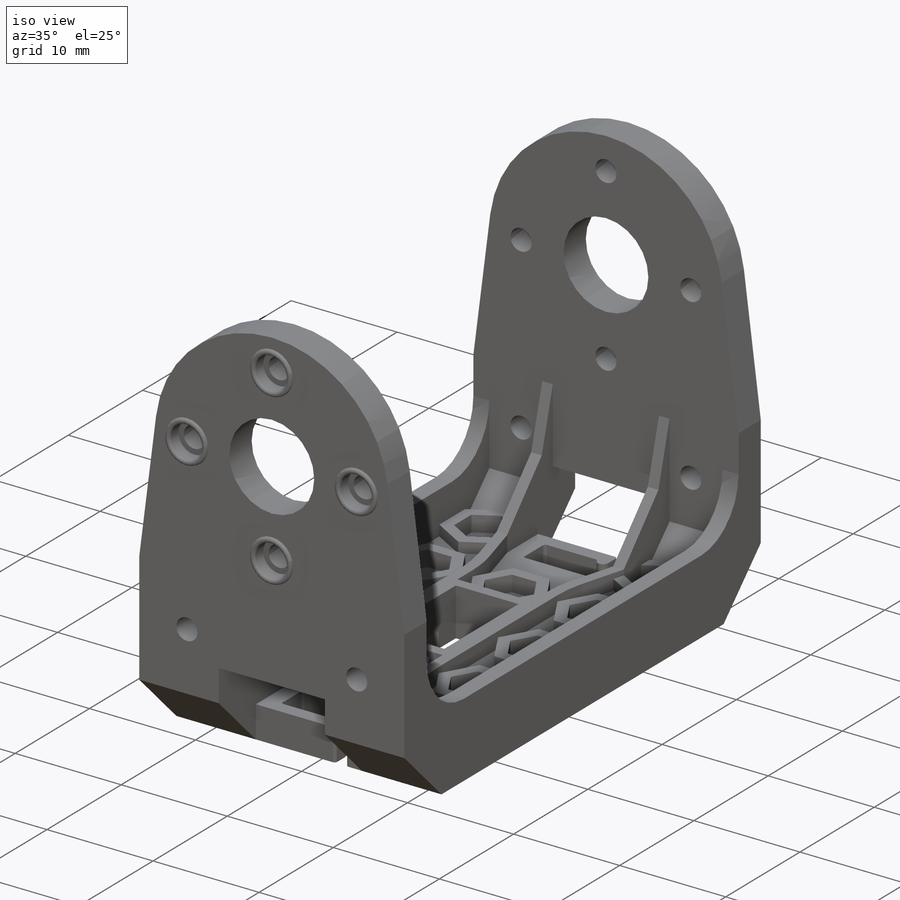
[diagram: iso view]
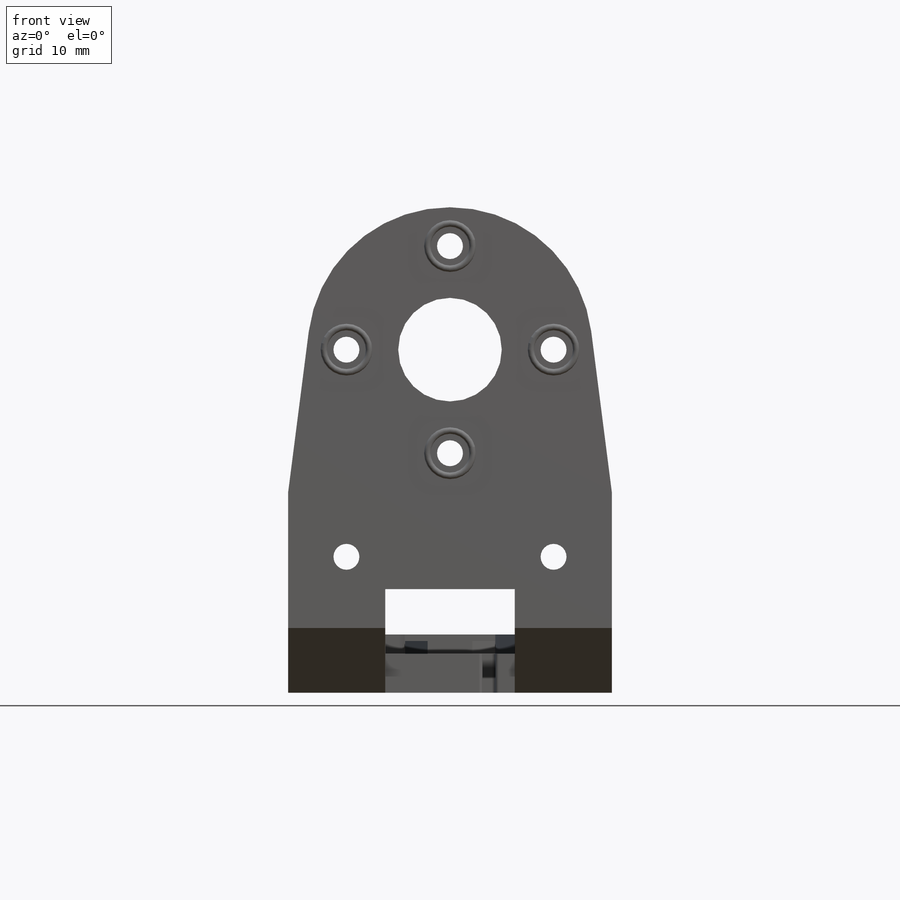
[diagram: front view]
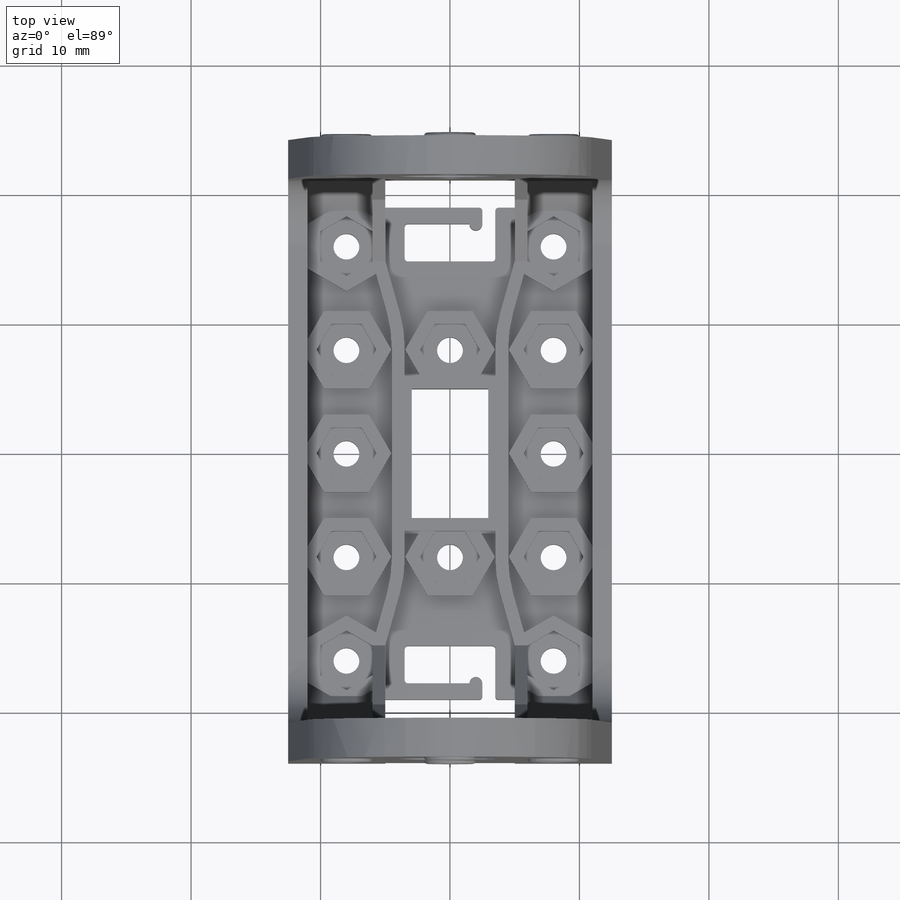
[diagram: top view]
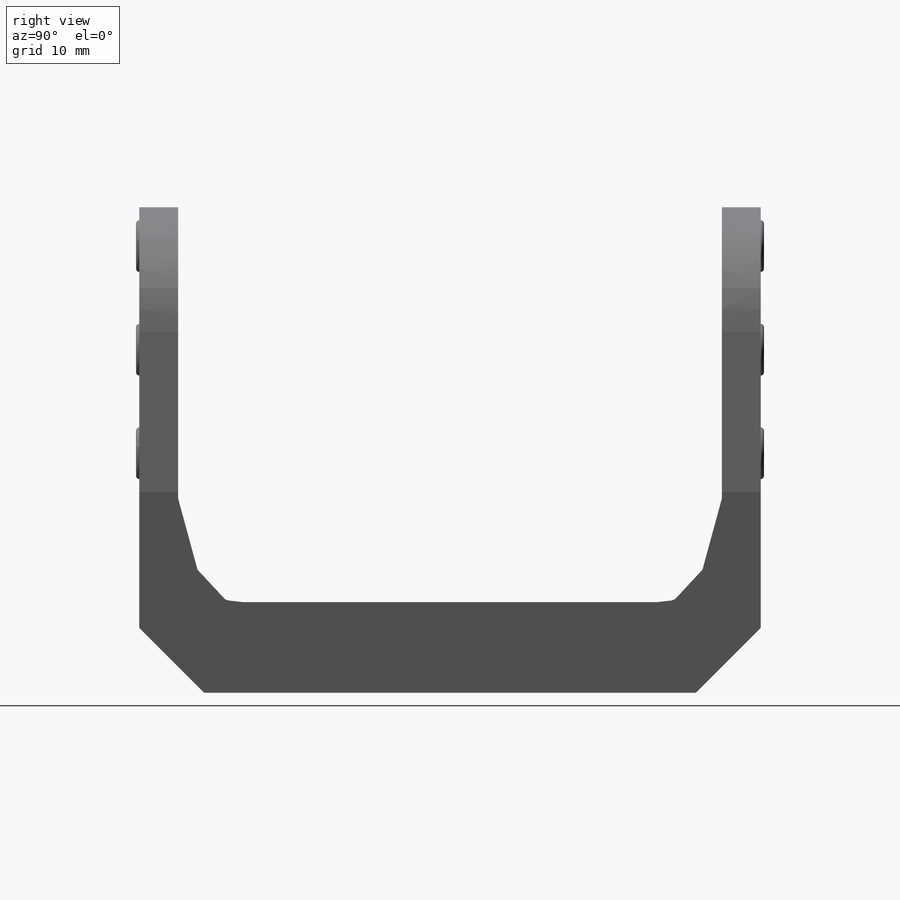
[diagram: right view]
SOLIDWORKS PART (.sldprt)
format: sldprt  version: not decoded by parser v0  size: 1,217,024 bytes
history: native  units: mm
features: sketch x16, cut_extrude x10, extrude x6, mirror x4, material x1, move_body x1, plane x1, fillet x1 + 1 further entry (+17 scaffold rows collapsed; 6 parser-record rows omitted)
feature tree (64):
  scaffold x17  (default folders/planes/origin — collapsed)
  material  "PVC Rigid"
  sketch  "Sketch1"  dims[D1=8.0mm D2=8.0mm D3=8.0mm D4=8.0mm]
  extrude  "Extrude1"  Depth=24mm
  sketch  "Sketch2"  dims[D1=3.0mm]
  cut_extrude  "Cut-Extrude1"  Depth=21mm
  sketch  "Sketch3"  dims[D1=4.5mm]
  cut_extrude  "Cut-Extrude2"  [1 undecoded]
  sketch  "Sketch4"  dims[D1=4.0mm D2=9.0mm D3=9.0mm]
  extrude  "Extrude2"  [1 undecoded]
  sketch  "Sketch5"  dims[D1=3.0mm]
  cut_extrude  "Cut-Extrude3"  Depth=11mm
  "Fg1"
  parser-record x6  (decoder bookkeeping rows leaked as tree rows — omitted from the tree; the rows remain in map.json)
  move_body  "Body-Move/Copy4"
  plane  "Plane1"  Offset=0mm
  sketch  "Sketch10"  dims[c1.D1=10.5mm c2.D1=90.0deg]
  extrude  "Extrude3"  Depth=1mm
  mirror  "Mirror3"
  sketch  "Sketch11"  dims[D1=~2.043666mm]
  extrude  "Extrude4"  Depth=0.25mm
  fillet  "Fillet1"  Radius=0.25mm
  sketch  "Sketch12"
  cut_extrude  "Cut-Extrude7"  Depth=1mm
  mirror  "Mirror4"
  sketch  "Sketch13"  dims[c1.D1=~2.053649mm c1.D3=2.0mm c2.D1=2.0mm c2.D3=2.0mm c3.D1=10.0mm c3.D2=8.0mm c3.D3=16.5mm c4.D1=16.0mm c4.D3=16.0mm]
  cut_extrude  "Cut-Extrude8"  [1 undecoded]
  sketch  "Sketch14"  dims[D1=3.0mm D2=3.0mm]
  extrude  "Extrude5"  Depth=6mm
  mirror  "Mirror5"
  sketch  "Sketch15"
  cut_extrude  "Cut-Extrude9"  Depth=6mm
  sketch  "Sketch16"
  cut_extrude  "Cut-Extrude10"  Depth=6mm
  sketch  "Sketch18"
  extrude  "Extrude6"  Depth=3mm
  sketch  "Sketch19"
  cut_extrude  "Cut-Extrude12"  Depth=3mm
  sketch  "Sketch20"  dims[D1=8.0mm]
  cut_extrude  "Cut-Extrude13"  [1 undecoded]
  sketch  "Sketch22"
  cut_extrude  "Extrude9"  Depth=0.002mm
  mirror  "Mirror6"
decode coverage: 23 of 38 modeling features carry decoded parameters; 1 rows unclassified (native names shown)
note: ~ marks probable driven/reference dimensions
note: 4 parameter values undecoded
summary: no parameter record found for 4 features
note: suppression state not decoded; provenance and decode notes live in map.json
